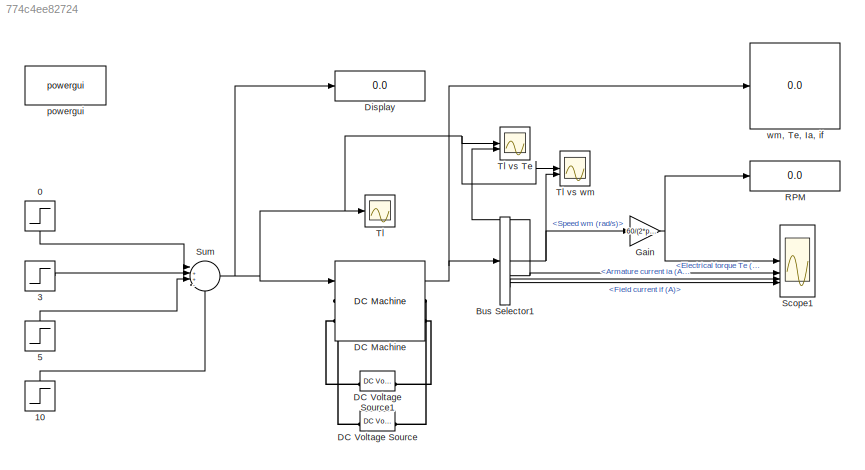
MODEL slx_774c4ee82724
KIND model
CONFIG AbsTol = auto
CONFIG EnableMultiTasking = off
CONFIG FixedStep = auto
CONFIG MaxStep = auto
CONFIG MinStep = auto
CONFIG RelTol = 1e-3
CONFIG SampleTimeConstraint = Unconstrained
CONFIG SolverName = VariableStepAuto
CONFIG StartTime = 0.0
CONFIG StopTime = 15
BLOCK [Step] 0
  After = 0
  NameLocation = left
  SampleTime = 0
  Time = 0
BLOCK [Step] 10
  After = 5.09
  NameLocation = right
  SampleTime = 0
  Time = 10
BLOCK [Step] 3
  After = 20.36
  SampleTime = 0
  Time = 3
BLOCK [Step] 5
  After = 10.18
  NameLocation = right
  SampleTime = 0
  Time = 5
BLOCK [BusSelector] Bus Selector1
  OutputSignals = Speed wm (rad/s),Electrical torque Te (n m),Armature current ia (A),Field current if (A)
BLOCK [Reference] DC Machine  REF=spsDCMachineLib/DC Machine
  LibrarySourceBlock = sps_lib/Electrical Machines/DC Machine
  SourceBlock = spsDCMachineLib/DC Machine
  SourceType = DC machine
BLOCK [Reference] DC Voltage Source  REF=spsDCVoltageSourceLib/DC Voltage Source
  LibrarySourceBlock = sps_lib/Sources/DC Voltage Source
  NameLocation = right
  SourceBlock = spsDCVoltageSourceLib/DC Voltage Source
  SourceType = DC Voltage Source
BLOCK [Reference] DC Voltage Source1  REF=spsDCVoltageSourceLib/DC Voltage Source
  LibrarySourceBlock = sps_lib/Sources/DC Voltage Source
  NameLocation = right
  SourceBlock = spsDCVoltageSourceLib/DC Voltage Source
  SourceType = DC Voltage Source
BLOCK [Display] Display
  Decimation = 1
BLOCK [Gain] Gain
  Gain = 60/(2*pi)
BLOCK [Display] RPM
  Decimation = 1
BLOCK [Scope] Scope1
  Floating = off
  NumInputPorts = 4
  ScopeSpecificationString = Simulink.scopes.TimeScopeBlockCfg('CurrentConfiguration', extmgr.ConfigurationSet(extmgr.Configuration('Core','General UI',true),extmgr.Configuration('Core','Source UI',true),extmgr.Configuration('Sources','WiredSimulink',true,'DataLoggingVariableName','ScopeData1'),extmgr.Configuration('Visuals','Time Domain',true,'SerializedDisplays',{struct('MinYLimReal','-268.79673','MaxYLimReal','2514.66351',...<+3601ch>
BLOCK [Sum] Sum
  Inputs = |++--
BLOCK [Scope] Tl
  Floating = off
  NumInputPorts = 1
  ScopeSpecificationString = Simulink.scopes.TimeScopeBlockCfg('CurrentConfiguration', extmgr.ConfigurationSet(extmgr.Configuration('Core','General UI',true),extmgr.Configuration('Core','Source UI',true),extmgr.Configuration('Sources','WiredSimulink',true),extmgr.Configuration('Visuals','Time Domain',true,'SerializedDisplays',{struct('MinYLimReal','-2.545','MaxYLimReal','22.905','YLabelReal','','MinYLimMag','0.00000','MaxYLim...<+1315ch>
BLOCK [Scope] Tl vs Te
  Floating = off
  NumInputPorts = 2
  ScopeSpecificationString = Simulink.scopes.TimeScopeBlockCfg('CurrentConfiguration', extmgr.ConfigurationSet(extmgr.Configuration('Core','General UI',true),extmgr.Configuration('Core','Source UI',true),extmgr.Configuration('Sources','WiredSimulink',true,'DataLoggingVariableName','ScopeData1'),extmgr.Configuration('Visuals','Time Domain',true,'SerializedDisplays',{struct('MinYLimReal','-12.4005','MaxYLimReal','111.6045','YLa...<+1452ch>
BLOCK [Scope] Tl vs wm
  Floating = off
  NumInputPorts = 2
  ScopeSpecificationString = Simulink.scopes.TimeScopeBlockCfg('CurrentConfiguration', extmgr.ConfigurationSet(extmgr.Configuration('Core','General UI',true),extmgr.Configuration('Core','Source UI',true),extmgr.Configuration('Sources','WiredSimulink',true,'DataLoggingVariableName','ScopeData2'),extmgr.Configuration('Visuals','Time Domain',true,'SerializedDisplays',{struct('MinYLimReal','-29.27333','MaxYLimReal','263.45995','Y...<+1420ch>
BLOCK [Reference] powergui  REF=sps_lib/powergui
  LibrarySourceBlock = sps_lib/powergui
  Priority = 1
  SourceBlock = sps_lib/powergui
  SourceType = PSB option menu block
BLOCK [Display] wm, Te, Ia, if
  Decimation = 1
LINE 0:1 -> Sum:1
LINE 10:1 -> Sum:4
LINE 3:1 -> Sum:2
LINE 5:1 -> Sum:3
NET Bus Selector1:1 -> Gain:1, Tl vs wm:2
NET Bus Selector1:2 -> Scope1:2, Tl vs Te:2
LINE Bus Selector1:3 -> Scope1:3
LINE Bus Selector1:4 -> Scope1:4
NET DC Machine:1 -> Bus Selector1:1, wm, Te, Ia, if:1
NET Gain:1 -> RPM:1, Scope1:1
NET Sum:1 -> DC Machine:1, Display:1, Tl vs Te:1, Tl vs wm:1, Tl:1
PLINE DC Machine:LConn1 -- DC Voltage Source:RConn1
PLINE DC Machine:LConn2 -- DC Voltage Source1:RConn1
PLINE DC Machine:RConn1 -- DC Voltage Source:LConn1
PLINE DC Machine:RConn2 -- DC Voltage Source1:LConn1
note: NET lines group one-source signal fan-out (src -> all destinations, sorted); 1:1 wires keep LINE
